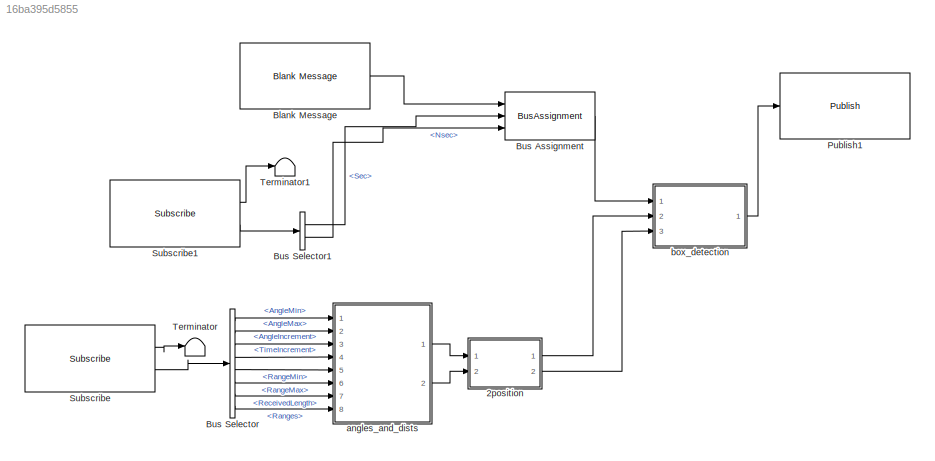
MODEL slx_16ba395d5855
KIND model
CONFIG AbsTol = auto
CONFIG EnableMultiTasking = off
CONFIG FixedStep = auto
CONFIG MaxStep = auto
CONFIG MinStep = auto
CONFIG RelTol = 1e-3
CONFIG SampleTimeConstraint = Unconstrained
CONFIG Solver = FixedStepAuto
CONFIG SolverName = FixedStepAuto
CONFIG StartTime = 0.0
CONFIG StopTime = inf
WORKSPACE source: MAT-file member
WORKSPACE SL_ROS_VariableLengthArrays_MaxSizes: struct (value not decoded)
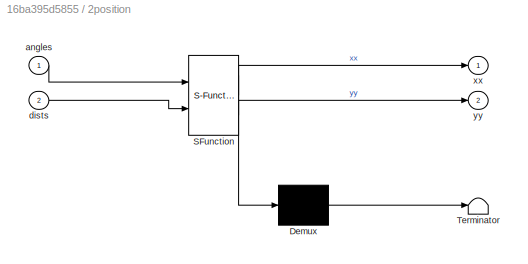
BLOCK [SubSystem]  2position
  ErrorFcn = Stateflow.Translate.translate
  PermitHierarchicalResolution = ExplicitOnly
  Ports = [2, 2]
  RequestExecContextInheritance = off
  SFBlockType = MATLAB Function
  TreatAsAtomicUnit = on
  Variant = off
BLOCK [Demux]  2position/ Demux 
  Outputs = 1
  Ports = [1, 1]
BLOCK [S-Function]  2position/ SFunction 
  EnableBusSupport = on
  FunctionName = sf_sfun
  PortCounts = [2 3]
  Ports = [2, 3]
  SFcnIsStateOwnerBlock = off
  SFunctionDeploymentMode = off
  Tag = Stateflow S-Function objectDetector 1
BLOCK [Terminator]  2position/ Terminator 
BLOCK [Inport]  2position/angles
  IconDisplay = Port number
BLOCK [Inport]  2position/dists
  IconDisplay = Port number
  Port = 2
BLOCK [Outport]  2position/xx
  IconDisplay = Port number
BLOCK [Outport]  2position/yy
  IconDisplay = Port number
  Port = 2
BLOCK [Reference] Blank Message  REF=robotlib/Blank Message
  Ports = [0, 1]
  SourceBlock = robotlib/Blank Message
  SourceLibraryInfo = This block requires Robotics System Toolbox
  SourceType = ROS Blank Message
BLOCK [BusAssignment] Bus Assignment
  AssignedSignals = Header.Stamp.Sec,Header.Stamp.Nsec
  Ports = [3, 1]
BLOCK [BusSelector] Bus Selector
  OutputSignals = AngleMin,AngleMax,AngleIncrement,TimeIncrement,RangeMin,RangeMax,Ranges_SL_Info.ReceivedLength,Ranges
  Ports = [1, 8]
BLOCK [BusSelector] Bus Selector1
  OutputSignals = Clock_.Sec,Clock_.Nsec
  Ports = [1, 2]
BLOCK [Reference] Publish1  REF=robotlib/Publish
  Ports = [1]
  SourceBlock = robotlib/Publish
  SourceLibraryInfo = This block requires Robotics System Toolbox
  SourceType = ROS Publish
BLOCK [Reference] Subscribe  REF=robotlib/Subscribe
  Ports = [0, 2]
  SourceBlock = robotlib/Subscribe
  SourceLibraryInfo = This block requires Robotics System Toolbox
  SourceType = ROS Subscribe
BLOCK [Reference] Subscribe1  REF=robotlib/Subscribe
  Ports = [0, 2]
  SourceBlock = robotlib/Subscribe
  SourceLibraryInfo = This block requires Robotics System Toolbox
  SourceType = ROS Subscribe
BLOCK [Terminator] Terminator
BLOCK [Terminator] Terminator1
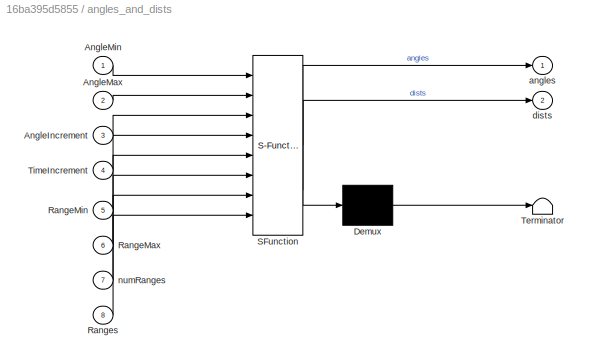
BLOCK [SubSystem] angles_and_dists
  ErrorFcn = Stateflow.Translate.translate
  PermitHierarchicalResolution = ExplicitOnly
  Ports = [8, 2]
  RequestExecContextInheritance = off
  SFBlockType = MATLAB Function
  TreatAsAtomicUnit = on
  Variant = off
BLOCK [Demux] angles_and_dists/ Demux 
  Outputs = 1
  Ports = [1, 1]
BLOCK [S-Function] angles_and_dists/ SFunction 
  EnableBusSupport = on
  FunctionName = sf_sfun
  PortCounts = [8 3]
  Ports = [8, 3]
  SFcnIsStateOwnerBlock = off
  SFunctionDeploymentMode = off
  Tag = Stateflow S-Function objectDetector 2
BLOCK [Terminator] angles_and_dists/ Terminator 
BLOCK [Inport] angles_and_dists/AngleIncrement
  IconDisplay = Port number
  Port = 3
BLOCK [Inport] angles_and_dists/AngleMax
  IconDisplay = Port number
  Port = 2
BLOCK [Inport] angles_and_dists/AngleMin
  IconDisplay = Port number
BLOCK [Inport] angles_and_dists/RangeMax
  IconDisplay = Port number
  Port = 6
BLOCK [Inport] angles_and_dists/RangeMin
  IconDisplay = Port number
  Port = 5
BLOCK [Inport] angles_and_dists/Ranges
  IconDisplay = Port number
  Port = 8
BLOCK [Inport] angles_and_dists/TimeIncrement
  IconDisplay = Port number
  Port = 4
BLOCK [Outport] angles_and_dists/angles
  IconDisplay = Port number
BLOCK [Outport] angles_and_dists/dists
  IconDisplay = Port number
  Port = 2
BLOCK [Inport] angles_and_dists/numRanges
  IconDisplay = Port number
  Port = 7
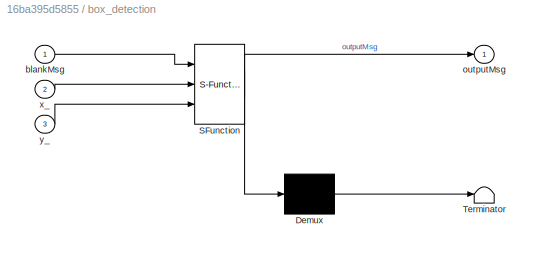
BLOCK [SubSystem] box_detection
  ErrorFcn = Stateflow.Translate.translate
  PermitHierarchicalResolution = ExplicitOnly
  Ports = [3, 1]
  RequestExecContextInheritance = off
  SFBlockType = MATLAB Function
  TreatAsAtomicUnit = on
  Variant = off
BLOCK [Demux] box_detection/ Demux 
  Outputs = 1
  Ports = [1, 1]
BLOCK [S-Function] box_detection/ SFunction 
  EnableBusSupport = on
  FunctionName = sf_sfun
  PortCounts = [3 2]
  Ports = [3, 2]
  SFcnIsStateOwnerBlock = off
  SFunctionDeploymentMode = off
  Tag = Stateflow S-Function objectDetector 3
BLOCK [Terminator] box_detection/ Terminator 
BLOCK [Inport] box_detection/blankMsg
  IconDisplay = Port number
BLOCK [Outport] box_detection/outputMsg
  IconDisplay = Port number
BLOCK [Inport] box_detection/x_
  IconDisplay = Port number
  Port = 2
BLOCK [Inport] box_detection/y_
  IconDisplay = Port number
  Port = 3
LINE  2position:1 -> box_detection:2
LINE  2position:2 -> box_detection:3
LINE Blank Message:1 -> Bus Assignment:1
LINE Bus Assignment:1 -> box_detection:1
LINE Bus Selector1:1 -> Bus Assignment:2
LINE Bus Selector1:2 -> Bus Assignment:3
LINE Bus Selector:1 -> angles_and_dists:1
LINE Bus Selector:2 -> angles_and_dists:2
LINE Bus Selector:3 -> angles_and_dists:3
LINE Bus Selector:4 -> angles_and_dists:4
LINE Bus Selector:5 -> angles_and_dists:5
LINE Bus Selector:6 -> angles_and_dists:6
LINE Bus Selector:7 -> angles_and_dists:7
LINE Bus Selector:8 -> angles_and_dists:8
LINE Subscribe1:1 -> Terminator1:1
LINE Subscribe1:2 -> Bus Selector1:1
LINE Subscribe:1 -> Terminator:1
LINE Subscribe:2 -> Bus Selector:1
LINE angles_and_dists:1 ->  2position:1
LINE angles_and_dists:2 ->  2position:2
LINE box_detection:1 -> Publish1:1
CHART  2position states=1 transitions=1
  STATE_LABEL 'eML_blk_kernel()'
  STATE_LABEL 'SCRIPT:\nfunction [xx, yy] = fcn(angles, dists)\n\n%#codegen\nxx = dists.*cos(angles);\nyy = dists.*sin(angles);\n% flag = 1;\n% tmp = 0;\n% for i = 1 : 180\n%     if(xx(i) ~= 0 && flag == 1)\n%         tmp = i;\n%         flag = 0;\n%     elseif(xx(i) == 0)\n%         flag = 1;\n%     else\n%         xx(tmp) = (xx(tmp) + xx(i))/2;\n%         yy(tmp) = (yy(tmp) + yy(i))/2;\n%         xx(i) = 0;\n%         yy(i) = 0...<+18ch>'
CHART angles_and_dists states=1 transitions=1
  STATE_LABEL 'eML_blk_kernel()'
  STATE_LABEL 'SCRIPT:\nfunction [angles,dists] = fcn(AngleMin, AngleMax, AngleIncrement, ...\n                TimeIncrement, RangeMin, RangeMax, numRanges, Ranges )\n%#codegen\n\n% this function transforms the laser scan into cartesian coordinates, so\n% that you can use other tools to group them together, make an image, etc.\nangleMin = AngleMin;\nangleMax = AngleMax;\nangleIncrement = AngleIncrement;\ntimeIncrement = T...<+718ch>'
CHART box_detection states=1 transitions=1
  STATE_LABEL 'eML_blk_kernel()'
  STATE_LABEL 'SCRIPT:\n    function outputMsg = fcn(blankMsg, x_, y_)\n    %#codegen\n    % the sequence of the message must increment each time we publish, so we\n    % need it to be persistent across instantiations\n    xc = zeros(180, 1);\n    yc = zeros(180, 1);\n    k = 1;\n    for i = 1:180\n        if(x_(i) ~= 0)\n            xc(k) = x_(i);\n            yc(k) = y_(i);\n            k = k + 1;\n        end\n    end\n    ...<+2434ch>'
